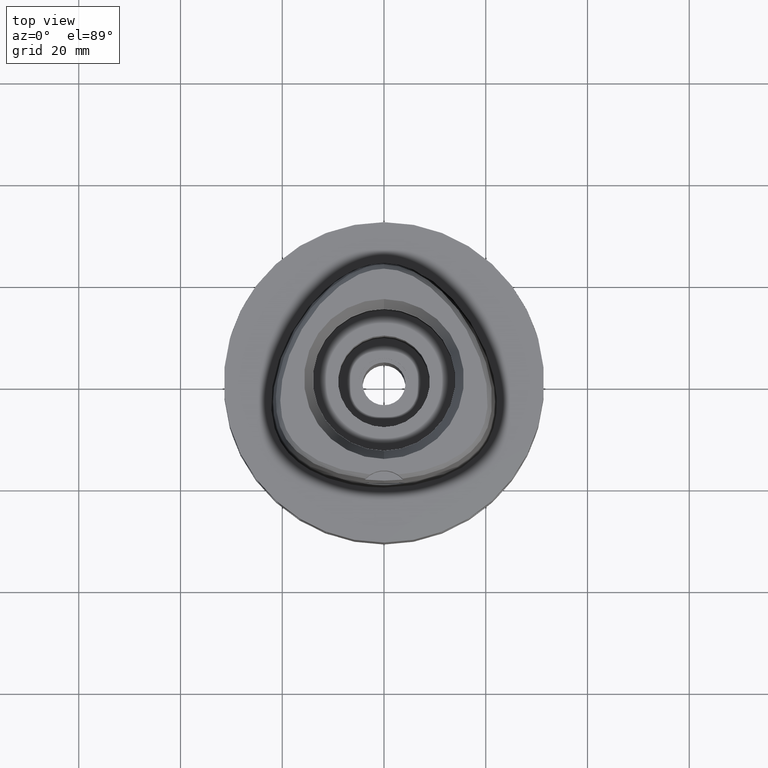
[diagram: clean part render]
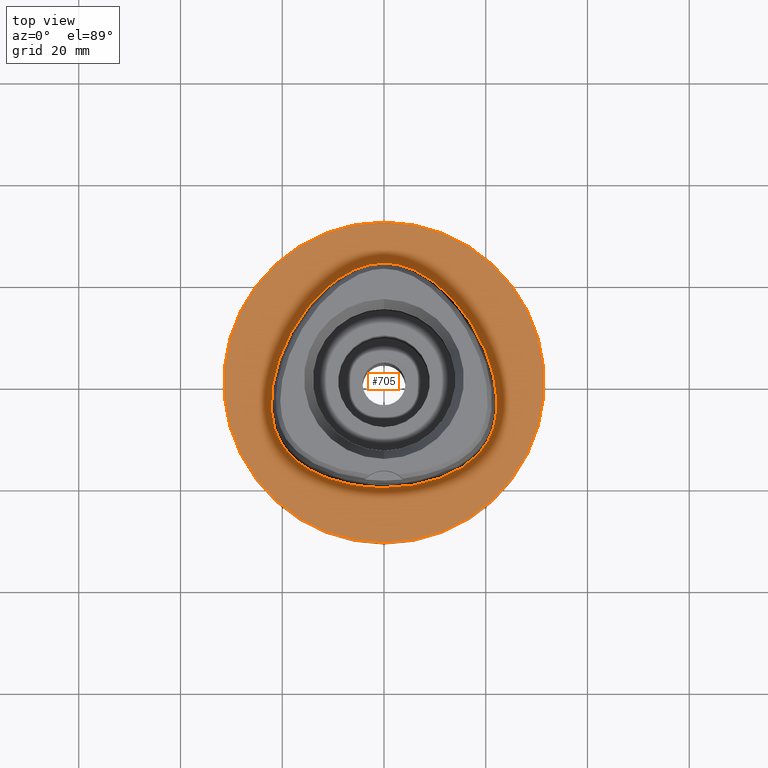
[diagram: same view with one face highlighted and labeled with its STEP entity id]
A machine part, top view. The second image highlights one B-rep face of the part: STEP entity #705.
In plain terms, the highlighted planar face has unit normal (0, 0, -1).
Its self-contained STEP definition (entity closure, byte-faithful):
#83 = CARTESIAN_POINT ( 'NONE',  ( -2.564517725215443189, 23.29328124165543557, 3.388672214740037075E-07 ) ) ;
#110 = DIRECTION ( 'NONE',  ( 0.0000000000000000000, -1.000000000000000000, 0.0000000000000000000 ) ) ;
#165 = CARTESIAN_POINT ( 'NONE',  ( -1.332091053908000054E-11, -20.67499999999999716, 1.606492716632999857E-13 ) ) ;
#245 = CARTESIAN_POINT ( 'NONE',  ( 2.564517728820954634, 23.29328125893548673, -3.628096994926291452E-07 ) ) ;
#298 = ORIENTED_EDGE ( 'NONE', *, *, #3427, .F. ) ;
#361 = AXIS2_PLACEMENT_3D ( 'NONE', #3039, #3882, #110 ) ;
#425 = EDGE_CURVE ( 'NONE', #1993, #883, #4076, .T. ) ;
#428 = ORIENTED_EDGE ( 'NONE', *, *, #425, .F. ) ;
#491 = CARTESIAN_POINT ( 'NONE',  ( -14.67337963998611094, -17.21410155512015550, 3.388672214740037075E-07 ) ) ;
#542 = CARTESIAN_POINT ( 'NONE',  ( 6.589893037093000684E-11, 23.47499999998000320, 1.576886769308999875E-13 ) ) ;
#574 = CARTESIAN_POINT ( 'NONE',  ( -1.332091053908000054E-11, -20.67499999999999716, 1.606492716632999857E-13 ) ) ;
#604 = CARTESIAN_POINT ( 'NONE',  ( 6.341471020823226112, -20.29812500898040639, -3.628096994926291452E-07 ) ) ;
#617 = DIRECTION ( 'NONE',  ( 0.0000000000000000000, 0.0000000000000000000, -1.000000000000000000 ) ) ;
#668 = CARTESIAN_POINT ( 'NONE',  ( 6.589893037093000684E-11, 23.47499999998000320, 1.576886769308999875E-13 ) ) ;
#705 = ADVANCED_FACE ( 'NONE', ( #3830, #4220 ), #2205, .F. ) ;
#883 = VERTEX_POINT ( 'NONE', #2892 ) ;
#910 = CARTESIAN_POINT ( 'NONE',  ( -16.95889172067865402, -15.67838866518065544, 3.388672214740037075E-07 ) ) ;
#933 = CIRCLE ( 'NONE', #1285, 31.50000000000000000 ) ;
#997 = CARTESIAN_POINT ( 'NONE',  ( -20.74942740077787562, 4.657187497111983987, 3.388672214740037075E-07 ) ) ;
#1032 = CARTESIAN_POINT ( 'NONE',  ( 10.74572891645618888, 19.17433594448327483, -3.628096994926291452E-07 ) ) ;
#1081 = CARTESIAN_POINT ( 'NONE',  ( -1.332091053908000054E-11, -20.67499999999999716, 1.606492716632999857E-13 ) ) ;
#1285 = AXIS2_PLACEMENT_3D ( 'NONE', #4228, #3757, #2071 ) ;
#1432 = CARTESIAN_POINT ( 'NONE',  ( -0.8548392416965923113, 23.47499999152771011, 3.388672214740036546E-07 ) ) ;
#1551 = CARTESIAN_POINT ( 'NONE',  ( 18.06826689315759182, 10.43171875456165054, -3.628096994926291452E-07 ) ) ;
#1819 = CARTESIAN_POINT ( 'NONE',  ( -21.97832646948277358, -0.2810937514821370553, 3.388672214740037075E-07 ) ) ;
#1845 = CARTESIAN_POINT ( 'NONE',  ( 7.571159438945859854, 21.31457032035061161, -3.628096994926291452E-07 ) ) ;
#1871 = CARTESIAN_POINT ( 'NONE',  ( 21.97832648684545376, -0.2810937484131401098, -3.628096994926291452E-07 ) ) ;
#1953 = CARTESIAN_POINT ( 'NONE',  ( 2.113823673605044196, -20.67500000906533941, -3.628096994926291452E-07 ) ) ;
#1993 = VERTEX_POINT ( 'NONE', #3009 ) ;
#2071 = DIRECTION ( 'NONE',  ( 0.0000000000000000000, -1.000000000000000000, 0.0000000000000000000 ) ) ;
#2074 = EDGE_CURVE ( 'NONE', #3455, #2512, #4369, .T. ) ;
#2205 = PLANE ( 'NONE',  #361 ) ;
#2248 = EDGE_LOOP ( 'NONE', ( #428, #3033 ) ) ;
#2293 = CARTESIAN_POINT ( 'NONE',  ( 20.74942741738146879, 4.657187503092539593, -3.628096994926291452E-07 ) ) ;
#2356 = CARTESIAN_POINT ( 'NONE',  ( 20.93173253041967286, -10.60431640994040414, -3.628096994926291452E-07 ) ) ;
#2512 = VERTEX_POINT ( 'NONE', #3433 ) ;
#2653 = CARTESIAN_POINT ( 'NONE',  ( -22.05732873480071277, -6.847636717539230311, 3.388672214740037075E-07 ) ) ;
#2680 = CARTESIAN_POINT ( 'NONE',  ( -18.56841064524938290, -14.16937987696447188, 3.388672214740037075E-07 ) ) ;
#2713 = CARTESIAN_POINT ( 'NONE',  ( 19.64947366598558887, -12.82525391159802730, -3.628096994926291452E-07 ) ) ;
#2739 = CARTESIAN_POINT ( 'NONE',  ( 0.8548392429512718937, 23.47500000907817963, -3.628096994926291452E-07 ) ) ;
#2778 = DIRECTION ( 'NONE',  ( 0.0000000000000000000, 1.000000000000000000, 0.0000000000000000000 ) ) ;
#2892 = CARTESIAN_POINT ( 'NONE',  ( 0.0000000000000000000, -31.50000000000000000, 0.0000000000000000000 ) ) ;
#3006 = CARTESIAN_POINT ( 'NONE',  ( -14.40795638307032256, 15.64093749449723525, 3.388672214740037075E-07 ) ) ;
#3009 = CARTESIAN_POINT ( 'NONE',  ( 0.0000000000000000000, 31.50000000000000000, 0.0000000000000000000 ) ) ;
#3033 = ORIENTED_EDGE ( 'NONE', *, *, #4789, .F. ) ;
#3039 = CARTESIAN_POINT ( 'NONE',  ( 0.0000000000000000000, 1.224646799146999965E-14, 0.0000000000000000000 ) ) ;
#3064 = CARTESIAN_POINT ( 'NONE',  ( -7.571159430058823858, 21.31457030516258655, 3.388672214740037075E-07 ) ) ;
#3175 = CARTESIAN_POINT ( 'NONE',  ( 22.24453908764879273, -4.100468749946767133, -3.628096994926291452E-07 ) ) ;
#3427 = EDGE_CURVE ( 'NONE', #2512, #3455, #5294, .T. ) ;
#3433 = CARTESIAN_POINT ( 'NONE',  ( 6.589893037093000684E-11, 23.47499999998000320, 1.576886769308999875E-13 ) ) ;
#3455 = VERTEX_POINT ( 'NONE', #165 ) ;
#3471 = CARTESIAN_POINT ( 'NONE',  ( -5.098437014121118160, 22.52602538273235666, 3.388672214740037075E-07 ) ) ;
#3526 = CARTESIAN_POINT ( 'NONE',  ( 18.56841065802437996, -14.16937988906564172, -3.628096994926291452E-07 ) ) ;
#3556 = CARTESIAN_POINT ( 'NONE',  ( 5.098437020669718045, 22.52602539908263424, -3.628096994926291452E-07 ) ) ;
#3587 = CARTESIAN_POINT ( 'NONE',  ( 14.67337964869621381, -17.21410157040828182, -3.628096994926291452E-07 ) ) ;
#3612 = CARTESIAN_POINT ( 'NONE',  ( 22.05732875224081369, -6.847636720045072956, -3.628096994926291452E-07 ) ) ;
#3632 = ORIENTED_EDGE ( 'NONE', *, *, #2074, .F. ) ;
#3645 = EDGE_LOOP ( 'NONE', ( #298, #3632 ) ) ;
#3757 = DIRECTION ( 'NONE',  ( 0.0000000000000000000, 0.0000000000000000000, -1.000000000000000000 ) ) ;
#3830 = FACE_OUTER_BOUND ( 'NONE', #2248, .T. ) ;
#3855 = CARTESIAN_POINT ( 'NONE',  ( -18.06826687790010411, 10.43171874574857227, 3.388672214740037075E-07 ) ) ;
#3882 = DIRECTION ( 'NONE',  ( 0.0000000000000000000, 0.0000000000000000000, -1.000000000000000000 ) ) ;
#3911 = CARTESIAN_POINT ( 'NONE',  ( -20.34961797821705431, -11.74885741763009328, 3.388672214740037075E-07 ) ) ;
#3942 = CARTESIAN_POINT ( 'NONE',  ( -11.23259756436736190, -18.89324217949569729, 3.388672214740037075E-07 ) ) ;
#3999 = CARTESIAN_POINT ( 'NONE',  ( 11.23259757038885454, -18.89324219607066269, -3.628096994926291452E-07 ) ) ;
#4033 = CARTESIAN_POINT ( 'NONE',  ( 14.40795639655206450, 15.64093750588842546, -3.628096994926291452E-07 ) ) ;
#4076 = CIRCLE ( 'NONE', #4781, 31.50000000000000000 ) ;
#4220 = FACE_BOUND ( 'NONE', #3645, .T. ) ;
#4228 = CARTESIAN_POINT ( 'NONE',  ( 0.0000000000000000000, 1.266897113717999920E-14, 0.0000000000000000000 ) ) ;
#4353 = CARTESIAN_POINT ( 'NONE',  ( -2.113823672561381706, -20.67499999153297097, 3.388672214740037075E-07 ) ) ;
#4369 = B_SPLINE_CURVE_WITH_KNOTS ( 'NONE', 3,
 ( #1081, #1953, #604, #3999, #3587, #5301, #3526, #2713, #4883, #2356, #5279, #3612, #3175, #1871, #2293, #1551, #4033, #1032, #1845, #3556, #245, #2739, #668 ),
 .UNSPECIFIED., .F., .F.,
 ( 4, 1, 1, 1, 1, 1, 1, 1, 1, 1, 1, 1, 1, 1, 1, 1, 1, 1, 1, 1, 4 ),
 ( 0.0000000000000000000, 0.08333333333346000515, 0.1666666666668000230, 0.2083333333334000115, 0.2500000000000000000, 0.2916666666666999919, 0.3125000000000000000, 0.3333333333333000081, 0.3541666666666999919, 0.3750000000000000000, 0.4166666666666999919, 0.4583333333332000326, 0.4999999999998999689, 0.5833333333332000326, 0.6666666666664999852, 0.7499999999998000488, 0.8333333333329999704, 0.8749999999997000177, 0.9166666666664000651, 0.9583333333329999704, 1.000000000000000000 ),
 .UNSPECIFIED. ) ;
#4423 = CARTESIAN_POINT ( 'NONE',  ( 0.0000000000000000000, 1.266897113717999920E-14, 0.0000000000000000000 ) ) ;
#4691 = CARTESIAN_POINT ( 'NONE',  ( -20.93173251436192928, -10.60431640280551235, 3.388672214740037075E-07 ) ) ;
#4750 = CARTESIAN_POINT ( 'NONE',  ( -22.24453907004640030, -4.100468750049620859, 3.388672214740037075E-07 ) ) ;
#4772 = CARTESIAN_POINT ( 'NONE',  ( -10.74572890511387868, 19.17433593097319999, 3.388672214740037075E-07 ) ) ;
#4781 = AXIS2_PLACEMENT_3D ( 'NONE', #4423, #617, #2778 ) ;
#4789 = EDGE_CURVE ( 'NONE', #883, #1993, #933, .T. ) ;
#4883 = CARTESIAN_POINT ( 'NONE',  ( 20.34961799343688327, -11.74885742641589381, -3.628096994926291452E-07 ) ) ;
#5109 = CARTESIAN_POINT ( 'NONE',  ( -19.64947365177016891, -12.82525390125731590, 3.388672214740037075E-07 ) ) ;
#5135 = CARTESIAN_POINT ( 'NONE',  ( -21.55524825194292404, -8.996025388202829376, 3.388672214740037075E-07 ) ) ;
#5191 = CARTESIAN_POINT ( 'NONE',  ( -6.341471017706539648, -20.29812499162227724, 3.388672214740037075E-07 ) ) ;
#5279 = CARTESIAN_POINT ( 'NONE',  ( 21.55524826882452771, -8.996025393218335608, -3.628096994926291452E-07 ) ) ;
#5294 = B_SPLINE_CURVE_WITH_KNOTS ( 'NONE', 3,
 ( #542, #1432, #83, #3471, #3064, #4772, #3006, #3855, #997, #1819, #4750, #2653, #5135, #4691, #3911, #5109, #2680, #910, #491, #3942, #5191, #4353, #574 ),
 .UNSPECIFIED., .F., .F.,
 ( 4, 1, 1, 1, 1, 1, 1, 1, 1, 1, 1, 1, 1, 1, 1, 1, 1, 1, 1, 1, 4 ),
 ( 0.0000000000000000000, 0.04166666666767999960, 0.08333333333429000789, 0.1250000000009000023, 0.1666666666676000219, 0.2500000000006999956, 0.3333333333339000282, 0.4166666666672000363, 0.5000000000004000134, 0.5416666666671000607, 0.5833333333336000459, 0.6250000000002999823, 0.6458333333335000148, 0.6666666666668999985, 0.6875000000001999512, 0.7083333333333999837, 0.7500000000001000311, 0.7916666666667000474, 0.8333333333333000637, 0.9166666666666000163, 1.000000000000000000 ),
 .UNSPECIFIED. ) ;
#5301 = CARTESIAN_POINT ( 'NONE',  ( 16.95889173157156904, -15.67838867903225264, -3.628096994926291452E-07 ) ) ;